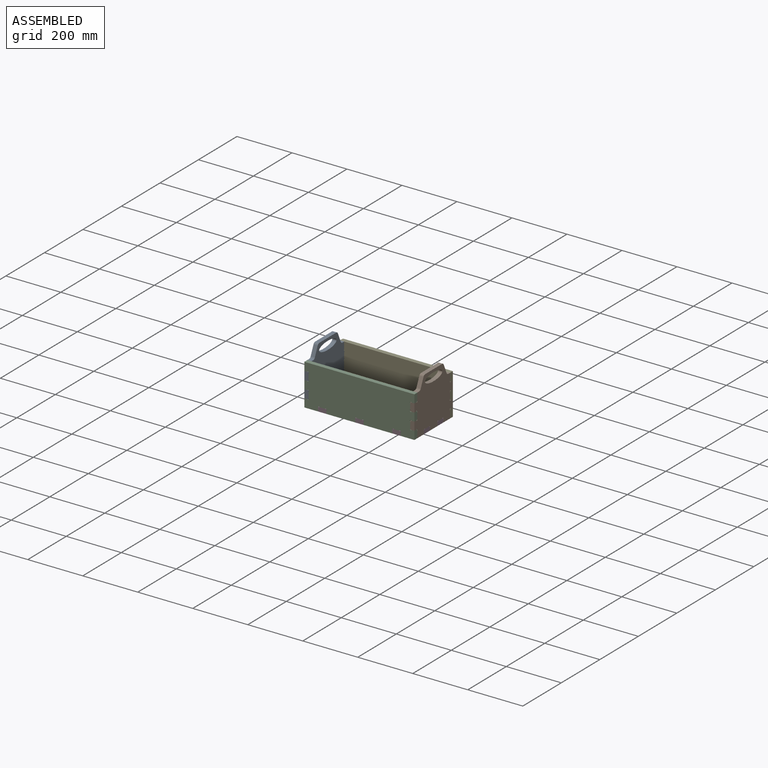
[diagram: assembled view]
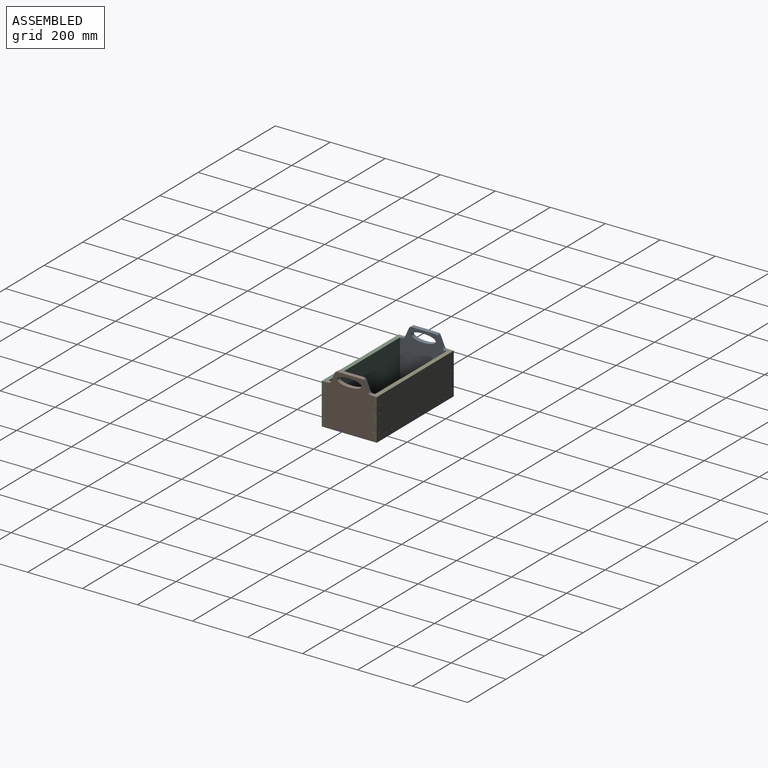
[diagram: assembled view, second angle]
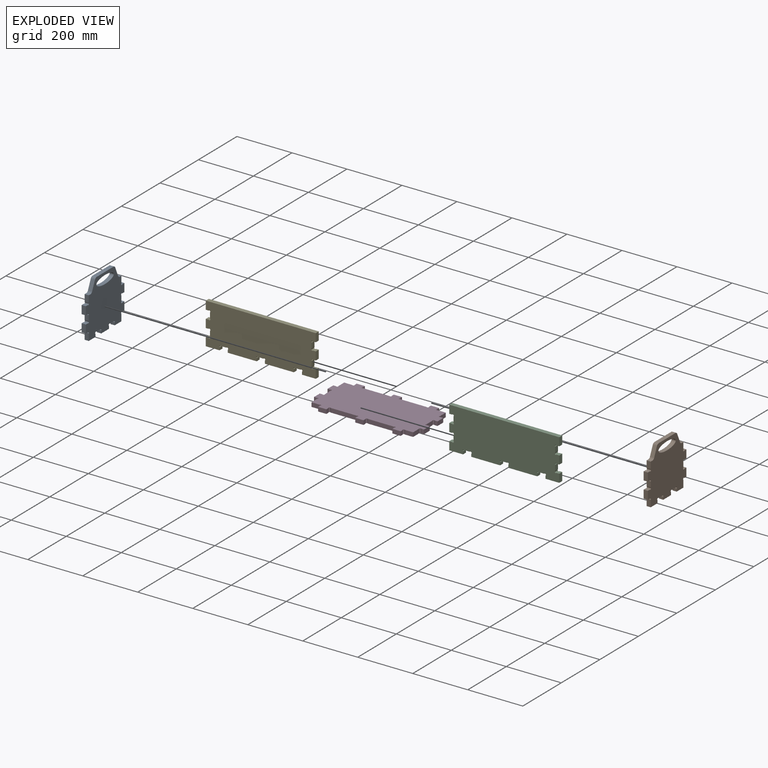
[diagram: exploded view]
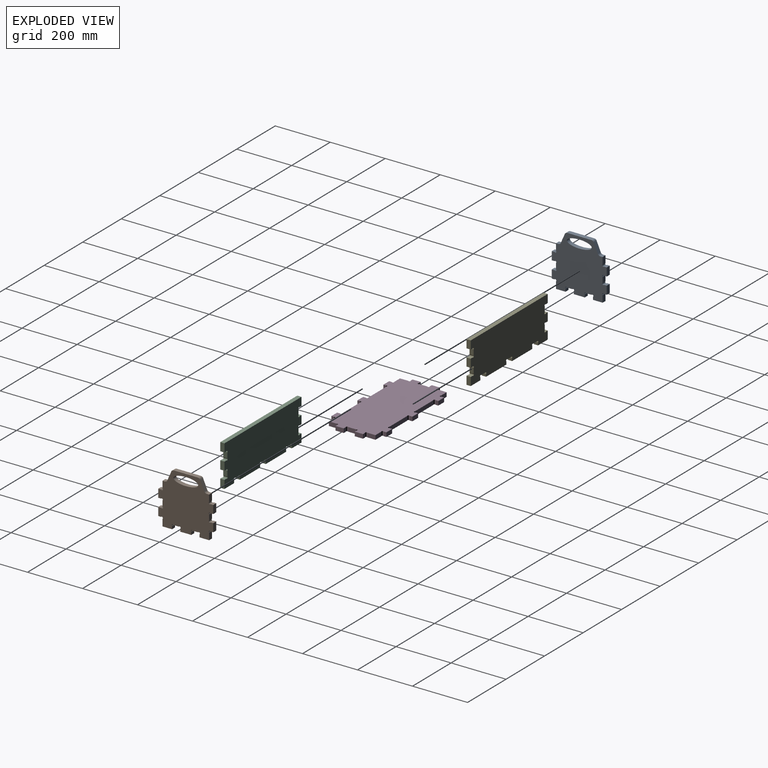
[diagram: exploded view, second angle]
ASSEMBLY  parts=5 mates=12
PART A: 51 faces, bbox 15.2x200x195 mm
  f0: plane 15.2x10.13mm, normal (0,1,0), area 154mm2, adj f1,f47,f49,f50
  f1: cylinder r=3.6mm len=15.2mm, axis (-1,0,0), area 182mm2, adj f0,f2,f49,f50
  f2: plane 19.86x15.2mm, normal (0,0,-1), area 301.9mm2, adj f1,f3,f49,f50
  f3: cylinder r=3.6mm len=15.2mm, axis (-1,0,0), area 182mm2, adj f2,f4,f49,f50
  f4: plane 15.2x10.13mm, normal (0,-1,0), area 154mm2, adj f3,f5,f49,f50
  f5: plane 34.8x15.2mm, normal (0,0,-1), area 529mm2, adj f4,f6,f49,f50
  f6: plane 24.93x15.2mm, normal (0,1,0), area 378.9mm2, adj f5,f7,f49,f50
  f7: cylinder r=3.6mm len=15.2mm, axis (-1,0,0), area 182mm2, adj f6,f8,f49,f50
  f8: plane 15.2x10.13mm, normal (0,0,-1), area 154mm2, adj f7,f9,f49,f50
  f9: plane 30x15.2mm, normal (0,1,0), area 456mm2, adj f8,f10,f49,f50
  f10: plane 15.2x10.13mm, normal (0,0,1), area 154mm2, adj f9,f11,f49,f50
  f11: cylinder r=3.6mm len=15.2mm, axis (-1,0,0), area 182mm2, adj f10,f12,f49,f50
  f12: plane 19.86x15.2mm, normal (0,1,0), area 301.9mm2, adj f11,f13,f49,f50
  f13: cylinder r=3.6mm len=15.2mm, axis (-1,0,0), area 182mm2, adj f12,f14,f49,f50
  f14: plane 15.2x10.13mm, normal (0,0,-1), area 154mm2, adj f13,f15,f49,f50
  f15: plane 30x15.2mm, normal (0,1,0), area 456mm2, adj f14,f16,f49,f50
  f16: plane 15.2x10.13mm, normal (0,0,1), area 154mm2, adj f15,f17,f49,f50
  f17: cylinder r=3.6mm len=15.2mm, axis (-1,0,0), area 182mm2, adj f16,f18,f49,f50
  f18: plane 24.93x15.2mm, normal (0,1,0), area 378.9mm2, adj f17,f19,f49,f50
  f19: plane 15.2x8.47mm, normal (0,0,1), area 128.8mm2, adj f18,f20,f49,f50
  f20: cylinder r=10mm len=15.2mm, axis (-1,0,0), area 175.8mm2, adj f19,f21,f49,f50
  f21: plane 33.05x15.2mm, normal (0,0.92,0.4), area 548.9mm2, adj f20,f22,f49,f50
  f22: cylinder r=10mm len=15.2mm, axis (-1,0,0), area 175.8mm2, adj f21,f23,f49,f50
  f23: plane 86.95x15.2mm, normal (0,0,1), area 1321.6mm2, adj f22,f24,f49,f50
  f24: cylinder r=10mm len=15.2mm, axis (-1,0,0), area 175.8mm2, adj f23,f25,f49,f50
  f25: plane 33.05x15.2mm, normal (0,-0.92,0.4), area 548.9mm2, adj f24,f26,f49,f50
  f26: cylinder r=10mm len=15.2mm, axis (-1,0,0), area 175.8mm2, adj f25,f27,f49,f50
  f27: plane 15.2x8.48mm, normal (0,0,1), area 128.8mm2, adj f26,f28,f49,f50
  f28: plane 24.93x15.2mm, normal (0,-1,0), area 378.9mm2, adj f27,f29,f49,f50
  f29: cylinder r=3.6mm len=15.2mm, axis (-1,0,0), area 182mm2, adj f28,f30,f49,f50
  f30: plane 15.2x10.13mm, normal (0,0,1), area 154mm2, adj f29,f31,f49,f50
  f31: plane 30x15.2mm, normal (0,-1,0), area 456mm2, adj f30,f32,f49,f50
  f32: plane 15.2x10.13mm, normal (0,0,-1), area 154mm2, adj f31,f33,f49,f50
  f33: cylinder r=3.6mm len=15.2mm, axis (-1,0,0), area 182mm2, adj f32,f34,f49,f50
  f34: plane 19.86x15.2mm, normal (0,-1,0), area 301.9mm2, adj f33,f35,f49,f50
  f35: cylinder r=3.6mm len=15.2mm, axis (-1,0,0), area 182mm2, adj f34,f36,f49,f50
  f36: plane 15.2x10.13mm, normal (0,0,1), area 154mm2, adj f35,f37,f49,f50
  f37: plane 30x15.2mm, normal (0,-1,0), area 456mm2, adj f36,f38,f49,f50
  f38: plane 15.2x10.13mm, normal (0,0,-1), area 154mm2, adj f37,f39,f49,f50
  f39: cylinder r=3.6mm len=15.2mm, axis (-1,0,0), area 182mm2, adj f38,f40,f49,f50
  f40: plane 24.93x15.2mm, normal (0,-1,0), area 378.9mm2, adj f39,f41,f49,f50
  f41: plane 34.8x15.2mm, normal (0,0,-1), area 529mm2, adj f40,f42,f49,f50
  f42: plane 15.2x10.13mm, normal (0,1,0), area 154mm2, adj f41,f43,f49,f50
  f43: cylinder r=3.6mm len=15.2mm, axis (-1,0,0), area 182mm2, adj f42,f44,f49,f50
  f44: plane 19.86x15.2mm, normal (0,0,-1), area 301.9mm2, adj f43,f45,f49,f50
  f45: cylinder r=3.6mm len=15.2mm, axis (-1,0,0), area 182mm2, adj f44,f46,f49,f50
  f46: plane 15.2x10.13mm, normal (0,-1,0), area 154mm2, adj f45,f47,f49,f50
  f47: plane 40x15.2mm, normal (0,0,-1), area 608mm2, adj f0,f46,f49,f50
  f48: extruded ~90x30mm, area 3048.1mm2, adj f49,f50
  f49: plane 200x195mm, normal (1,0,0), area 29503.7mm2, adj f0,f1,f2,f3,f4,f5,f6,f7
  f50: plane 200x195mm, normal (-1,0,0), area 29503.7mm2, adj f0,f1,f2,f3,f4,f5,f6,f7
PART B: same geometry as A
PART C: 48 faces, bbox 400x15.2x150 mm
  f0: plane 15.2x10.13mm, normal (0,0,-1), area 154mm2, adj f1,f45,f46,f47
  f1: plane 30x15.2mm, normal (1,0,0), area 456mm2, adj f0,f2,f46,f47
  f2: plane 400x15.2mm, normal (0,0,1), area 6080mm2, adj f1,f3,f46,f47
  f3: plane 30x15.2mm, normal (-1,0,0), area 456mm2, adj f2,f4,f46,f47
  f4: plane 15.2x10.13mm, normal (0,0,-1), area 154mm2, adj f3,f5,f46,f47
  f5: cylinder r=3.6mm len=15.2mm, axis (0,1,0), area 182mm2, adj f4,f6,f46,f47
  f6: plane 19.86x15.2mm, normal (-1,0,0), area 301.9mm2, adj f5,f7,f46,f47
  f7: cylinder r=3.6mm len=15.2mm, axis (0,1,0), area 182mm2, adj f6,f8,f46,f47
  f8: plane 15.2x10.13mm, normal (0,0,1), area 154mm2, adj f7,f9,f46,f47
  f9: plane 30x15.2mm, normal (-1,0,0), area 456mm2, adj f8,f10,f46,f47
  f10: plane 15.2x10.13mm, normal (0,0,-1), area 154mm2, adj f9,f11,f46,f47
  f11: cylinder r=3.6mm len=15.2mm, axis (0,1,0), area 182mm2, adj f10,f12,f46,f47
  f12: plane 19.86x15.2mm, normal (-1,0,0), area 301.9mm2, adj f11,f13,f46,f47
  f13: cylinder r=3.6mm len=15.2mm, axis (0,1,0), area 182mm2, adj f12,f14,f46,f47
  f14: plane 15.2x10.13mm, normal (0,0,1), area 154mm2, adj f13,f15,f46,f47
  f15: plane 30x15.2mm, normal (-1,0,0), area 456mm2, adj f14,f16,f46,f47
  f16: plane 50x15.2mm, normal (0,0,-1), area 760mm2, adj f15,f17,f46,f47
  f17: plane 15.2x10.13mm, normal (1,0,0), area 154mm2, adj f16,f18,f46,f47
  f18: cylinder r=3.6mm len=15.2mm, axis (0,1,0), area 182mm2, adj f17,f19,f46,f47
  f19: plane 19.86x15.2mm, normal (0,0,-1), area 301.9mm2, adj f18,f20,f46,f47
  f20: cylinder r=3.6mm len=15.2mm, axis (0,1,0), area 182mm2, adj f19,f21,f46,f47
  f21: plane 15.2x10.13mm, normal (-1,0,0), area 154mm2, adj f20,f22,f46,f47
  f22: plane 105x15.2mm, normal (0,0,-1), area 1596mm2, adj f21,f23,f46,f47
  f23: plane 15.2x10.13mm, normal (1,0,0), area 154mm2, adj f22,f24,f46,f47
  f24: cylinder r=3.6mm len=15.2mm, axis (0,1,0), area 182mm2, adj f23,f25,f46,f47
  f25: plane 19.86x15.2mm, normal (0,0,-1), area 301.9mm2, adj f24,f26,f46,f47
  f26: cylinder r=3.6mm len=15.2mm, axis (0,1,0), area 182mm2, adj f25,f27,f46,f47
  f27: plane 15.2x10.13mm, normal (-1,0,0), area 154mm2, adj f26,f28,f46,f47
  f28: plane 105x15.2mm, normal (0,0,-1), area 1596mm2, adj f27,f29,f46,f47
  f29: plane 15.2x10.13mm, normal (1,0,0), area 154mm2, adj f28,f30,f46,f47
  f30: cylinder r=3.6mm len=15.2mm, axis (0,1,0), area 182mm2, adj f29,f31,f46,f47
  f31: plane 19.86x15.2mm, normal (0,0,-1), area 301.9mm2, adj f30,f32,f46,f47
  f32: cylinder r=3.6mm len=15.2mm, axis (0,1,0), area 182mm2, adj f31,f33,f46,f47
  f33: plane 15.2x10.13mm, normal (-1,0,0), area 154mm2, adj f32,f34,f46,f47
  f34: plane 50x15.2mm, normal (0,0,-1), area 760mm2, adj f33,f35,f46,f47
  f35: plane 30x15.2mm, normal (1,0,0), area 456mm2, adj f34,f36,f46,f47
  f36: plane 15.2x10.13mm, normal (0,0,1), area 154mm2, adj f35,f37,f46,f47
  f37: cylinder r=3.6mm len=15.2mm, axis (0,1,0), area 182mm2, adj f36,f38,f46,f47
  f38: plane 19.86x15.2mm, normal (1,0,0), area 301.9mm2, adj f37,f39,f46,f47
  f39: cylinder r=3.6mm len=15.2mm, axis (0,1,0), area 182mm2, adj f38,f40,f46,f47
  f40: plane 15.2x10.13mm, normal (0,0,-1), area 154mm2, adj f39,f41,f46,f47
  f41: plane 30x15.2mm, normal (1,0,0), area 456mm2, adj f40,f42,f46,f47
  f42: plane 15.2x10.13mm, normal (0,0,1), area 154mm2, adj f41,f43,f46,f47
  f43: cylinder r=3.6mm len=15.2mm, axis (0,1,0), area 182mm2, adj f42,f44,f46,f47
  f44: plane 19.86x15.2mm, normal (1,0,0), area 301.9mm2, adj f43,f45,f46,f47
  f45: cylinder r=3.6mm len=15.2mm, axis (0,1,0), area 182mm2, adj f0,f44,f46,f47
  f46: plane 400x150mm, normal (0,-1,0), area 56669.5mm2, adj f0,f1,f2,f3,f4,f5,f6,f7
  f47: plane 400x150mm, normal (0,1,0), area 56669.5mm2, adj f0,f1,f2,f3,f4,f5,f6,f7
PART D: 66 faces, bbox 400x200x15.2 mm
  f0: plane 15.2x10.13mm, normal (1,0,0), area 154mm2, adj f1,f63,f64,f65
  f1: plane 30x15.2mm, normal (0,1,0), area 456mm2, adj f0,f2,f64,f65
  f2: plane 15.2x10.13mm, normal (-1,0,0), area 154mm2, adj f1,f3,f64,f65
  f3: cylinder r=3.6mm len=15.2mm, axis (0,0,-1), area 182mm2, adj f2,f4,f64,f65
  f4: plane 94.86x15.2mm, normal (0,1,0), area 1441.9mm2, adj f3,f5,f64,f65
  f5: cylinder r=3.6mm len=15.2mm, axis (0,0,-1), area 182mm2, adj f4,f6,f64,f65
  f6: plane 15.2x10.13mm, normal (1,0,0), area 154mm2, adj f5,f7,f64,f65
  f7: plane 30x15.2mm, normal (0,1,0), area 456mm2, adj f6,f8,f64,f65
  f8: plane 15.2x10.13mm, normal (-1,0,0), area 154mm2, adj f7,f9,f64,f65
  f9: cylinder r=3.6mm len=15.2mm, axis (0,0,-1), area 182mm2, adj f8,f10,f64,f65
  f10: plane 29.73x15.2mm, normal (0,1,0), area 451.9mm2, adj f9,f11,f64,f65
  f11: plane 29.73x15.2mm, normal (-1,0,0), area 451.9mm2, adj f10,f12,f64,f65
  f12: cylinder r=3.6mm len=15.2mm, axis (0,0,-1), area 182mm2, adj f11,f13,f64,f65
  f13: plane 15.2x10.13mm, normal (0,1,0), area 154mm2, adj f12,f14,f64,f65
  f14: plane 30x15.2mm, normal (-1,0,0), area 456mm2, adj f13,f15,f64,f65
  f15: plane 15.2x10.13mm, normal (0,-1,0), area 154mm2, adj f14,f16,f64,f65
  f16: cylinder r=3.6mm len=15.2mm, axis (0,0,-1), area 182mm2, adj f15,f17,f64,f65
  f17: plane 29.86x15.2mm, normal (-1,0,0), area 453.9mm2, adj f16,f18,f64,f65
  f18: cylinder r=3.6mm len=15.2mm, axis (0,0,-1), area 182mm2, adj f17,f19,f64,f65
  f19: plane 15.2x10.13mm, normal (0,1,0), area 154mm2, adj f18,f20,f64,f65
  f20: plane 30x15.2mm, normal (-1,0,0), area 456mm2, adj f19,f21,f64,f65
  f21: plane 15.2x10.13mm, normal (0,-1,0), area 154mm2, adj f20,f22,f64,f65
  f22: cylinder r=3.6mm len=15.2mm, axis (0,0,-1), area 182mm2, adj f21,f23,f64,f65
  f23: plane 29.73x15.2mm, normal (-1,0,0), area 451.9mm2, adj f22,f24,f64,f65
  f24: plane 29.73x15.2mm, normal (0,-1,0), area 451.9mm2, adj f23,f25,f64,f65
  f25: cylinder r=3.6mm len=15.2mm, axis (0,0,-1), area 182mm2, adj f24,f26,f64,f65
  f26: plane 15.2x10.13mm, normal (-1,0,0), area 154mm2, adj f25,f27,f64,f65
  f27: plane 30x15.2mm, normal (0,-1,0), area 456mm2, adj f26,f28,f64,f65
  f28: plane 15.2x10.13mm, normal (1,0,0), area 154mm2, adj f27,f29,f64,f65
  f29: cylinder r=3.6mm len=15.2mm, axis (0,0,-1), area 182mm2, adj f28,f30,f64,f65
  f30: plane 94.86x15.2mm, normal (0,-1,0), area 1441.9mm2, adj f29,f31,f64,f65
  f31: cylinder r=3.6mm len=15.2mm, axis (0,0,-1), area 182mm2, adj f30,f32,f64,f65
  f32: plane 15.2x10.13mm, normal (-1,0,0), area 154mm2, adj f31,f33,f64,f65
  f33: plane 30x15.2mm, normal (0,-1,0), area 456mm2, adj f32,f34,f64,f65
  f34: plane 15.2x10.13mm, normal (1,0,0), area 154mm2, adj f33,f35,f64,f65
  f35: cylinder r=3.6mm len=15.2mm, axis (0,0,-1), area 182mm2, adj f34,f36,f64,f65
  f36: plane 94.86x15.2mm, normal (0,-1,0), area 1441.9mm2, adj f35,f37,f64,f65
  f37: cylinder r=3.6mm len=15.2mm, axis (0,0,-1), area 182mm2, adj f36,f38,f64,f65
  f38: plane 15.2x10.13mm, normal (-1,0,0), area 154mm2, adj f37,f39,f64,f65
  f39: plane 30x15.2mm, normal (0,-1,0), area 456mm2, adj f38,f40,f64,f65
  f40: plane 15.2x10.13mm, normal (1,0,0), area 154mm2, adj f39,f41,f64,f65
  f41: cylinder r=3.6mm len=15.2mm, axis (0,0,-1), area 182mm2, adj f40,f42,f64,f65
  f42: plane 29.73x15.2mm, normal (0,-1,0), area 451.9mm2, adj f41,f43,f64,f65
  f43: plane 29.73x15.2mm, normal (1,0,0), area 451.9mm2, adj f42,f44,f64,f65
  f44: cylinder r=3.6mm len=15.2mm, axis (0,0,-1), area 161.8mm2, adj f43,f45,f64,f65
  f45: plane 15.2x10.13mm, normal (0,-1,0), area 154mm2, adj f44,f46,f64,f65
  f46: plane 30x15.2mm, normal (1,0,0), area 456mm2, adj f45,f47,f64,f65
  f47: plane 15.2x10.13mm, normal (0,1,0), area 154mm2, adj f46,f48,f64,f65
  f48: cylinder r=3.6mm len=15.2mm, axis (0,0,-1), area 182mm2, adj f47,f49,f64,f65
  f49: plane 29.86x15.2mm, normal (1,0,0), area 453.9mm2, adj f48,f50,f64,f65
  f50: cylinder r=3.6mm len=15.2mm, axis (0,0,-1), area 182mm2, adj f49,f51,f64,f65
  f51: plane 15.2x10.13mm, normal (0,-1,0), area 154mm2, adj f50,f52,f64,f65
  f52: plane 30x15.2mm, normal (1,0,0), area 456mm2, adj f51,f53,f64,f65
  f53: plane 15.2x10.13mm, normal (0,1,0), area 154mm2, adj f52,f54,f64,f65
  f54: cylinder r=3.6mm len=15.2mm, axis (0,0,-1), area 182mm2, adj f53,f55,f64,f65
  f55: plane 29.73x15.2mm, normal (1,0,0), area 451.9mm2, adj f54,f56,f64,f65
  f56: plane 29.73x15.2mm, normal (0,1,0), area 451.9mm2, adj f55,f57,f64,f65
  f57: cylinder r=3.6mm len=15.2mm, axis (0,0,-1), area 182mm2, adj f56,f58,f64,f65
  f58: plane 15.2x10.13mm, normal (1,0,0), area 154mm2, adj f57,f59,f64,f65
  f59: plane 30x15.2mm, normal (0,1,0), area 456mm2, adj f58,f60,f64,f65
  f60: plane 15.2x10.13mm, normal (-1,0,0), area 154mm2, adj f59,f61,f64,f65
  f61: cylinder r=3.6mm len=15.2mm, axis (0,0,-1), area 182mm2, adj f60,f62,f64,f65
  f62: plane 94.86x15.2mm, normal (0,1,0), area 1441.9mm2, adj f61,f63,f64,f65
  f63: cylinder r=3.6mm len=15.2mm, axis (0,0,-1), area 182mm2, adj f0,f62,f64,f65
  f64: plane 400x200mm, normal (0,0,1), area 67051mm2, adj f0,f1,f2,f3,f4,f5,f6,f7
  f65: plane 400x200mm, normal (0,0,-1), area 67051mm2, adj f0,f1,f2,f3,f4,f5,f6,f7
PART E: same geometry as C
PLACE A rot(axis=(-0.02,0,1),0deg) t=(-530.95,336.81,116.6)mm
PLACE B rot(axis=(-0.01,0,1),0deg) t=(-146.15,336.81,116.6)mm
PLACE C rot(axis=(-0.02,0,1),0deg) t=(-530.95,153.21,116.6)mm
PLACE D t=(-515.75,322.81,-33.4)mm
PLACE E t=(-530.95,338.01,116.6)mm
MATE planar E.f25 <-> D.f64  axis (0,0,-1) through (-330.95,330.41,-18.2)mm
MATE planar D.f17 <-> A.f49  axis (-1,0,0) through (-515.75,238.01,-25.8)mm
MATE planar E.f6 <-> A.f49  axis (-1,0,0) through (-515.75,330.41,71.6)mm
MATE planar B.f50 <-> C.f44  axis (-1,0,0) through (-146.15,238.01,54.5)mm
MATE planar A.f34 <-> C.f47  axis (0,-1,0) through (-523.35,153.21,41.6)mm
MATE planar D.f62 <-> E.f46  axis (0,1,0) through (-263.45,322.81,-25.8)mm
MATE planar B.f50 <-> D.f49  axis (-1,0,0) through (-146.15,238.01,54.5)mm
MATE planar C.f25 <-> D.f64  axis (0,0,-1) through (-330.95,145.61,-18.2)mm
MATE planar B.f44 <-> D.f64  axis (0,0,-1) through (-138.55,203.01,-18.2)mm
MATE planar B.f34 <-> C.f47  axis (0,-1,0) through (-138.55,153.21,41.6)mm
MATE planar A.f44 <-> D.f64  axis (0,0,-1) through (-523.35,203.01,-18.2)mm
MATE planar D.f36 <-> C.f47  axis (0,-1,0) through (-263.45,153.21,-25.8)mm
